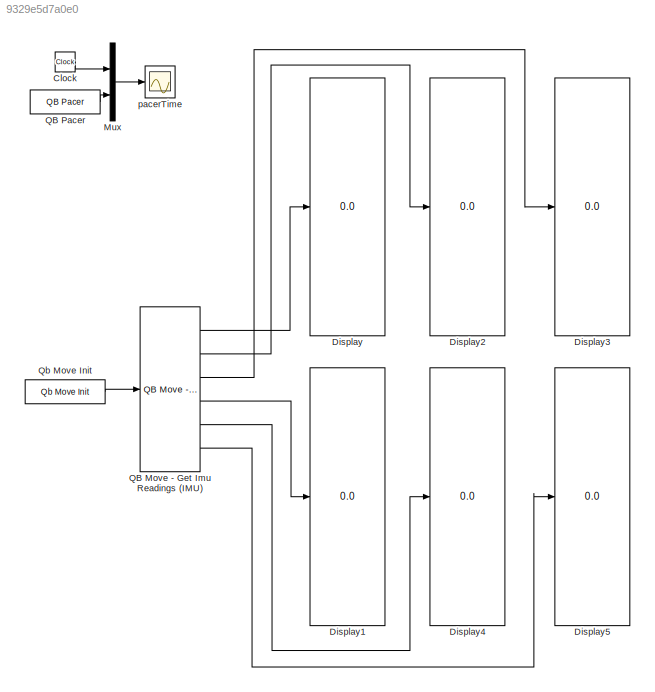
MODEL slx_9329e5d7a0e0
KIND model
CONFIG AbsTol = auto
CONFIG FixedStep = .0005
CONFIG MaxStep = auto
CONFIG MinStep = auto
CONFIG RelTol = 1e-3
CONFIG SampleTimeConstraint = Unconstrained
CONFIG Solver = ode1
CONFIG SolverMode = Auto
CONFIG SolverName = ode1
CONFIG StartTime = 0.0
CONFIG StopTime = inf
BLOCK [Clock] Clock
BLOCK [Display] Display
  Decimation = 1
  Ports = [1]
BLOCK [Display] Display1
  Decimation = 1
  Ports = [1]
BLOCK [Display] Display2
  Decimation = 1
  Ports = [1]
BLOCK [Display] Display3
  Decimation = 1
  Ports = [1]
BLOCK [Display] Display4
  Decimation = 1
  Ports = [1]
BLOCK [Display] Display5
  Decimation = 1
  Ports = [1]
BLOCK [Mux] Mux
  DisplayOption = bar
  Inputs = 2
  Ports = [2, 1]
BLOCK [Reference] QB Move - Get Imu Readings (IMU)  REF=qbmove_library_2015b/QB Move - Get Imu Readings (IMU)
  Ports = [1, 6]
  SourceBlock = qbmove_library_2015b/QB Move - Get Imu Readings (IMU)
  SourceType = qb get imu reading
BLOCK [Reference] QB Pacer  REF=QB_pacer_lib/QB Pacer
  Ports = [0, 1]
  SourceBlock = QB_pacer_lib/QB Pacer
  SourceType = RealTime_Pacer
BLOCK [Reference] Qb Move Init  REF=qbmove_library/Qb Move Init
  Ports = [0, 1]
  SourceBlock = qbmove_library/Qb Move Init
  SourceType = qb Init - ISS
BLOCK [Scope] pacerTime
  Ports = [1]
  ScopeSpecificationString = Simulink.scopes.TimeScopeBlockCfg('CurrentConfiguration', extmgr.ConfigurationSet(extmgr.Configuration('Core','General UI',true),extmgr.Configuration('Core','Source UI',true),extmgr.Configuration('Sources','WiredSimulink',true,'DataLoggingVariableName','ScopeData3','DataLoggingLimitDataPoints',true,'DataLoggingSaveFormat','Array','DataLoggingDecimation','1','DataLoggingDecimateData',true),extmgr.C...<+1554ch>
LINE Clock:1 -> Mux:1
LINE Mux:1 -> pacerTime:1
LINE QB Move - Get Imu Readings (IMU):1 -> Display:1
LINE QB Move - Get Imu Readings (IMU):2 -> Display2:1
LINE QB Move - Get Imu Readings (IMU):3 -> Display3:1
LINE QB Move - Get Imu Readings (IMU):4 -> Display1:1
LINE QB Move - Get Imu Readings (IMU):5 -> Display4:1
LINE QB Move - Get Imu Readings (IMU):6 -> Display5:1
LINE QB Pacer:1 -> Mux:2
LINE Qb Move Init:1 -> QB Move - Get Imu Readings (IMU):1
